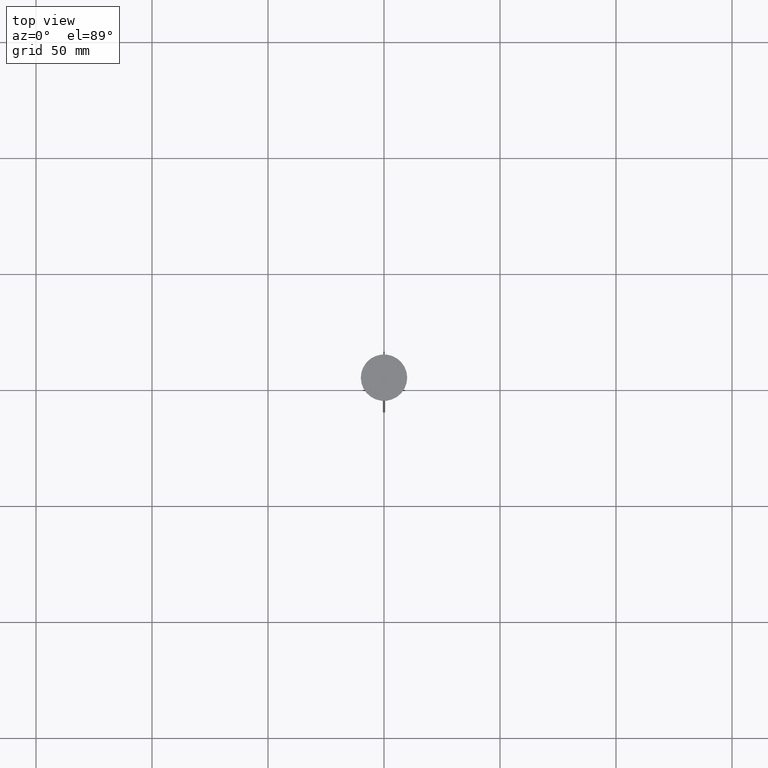
[diagram: clean part render]
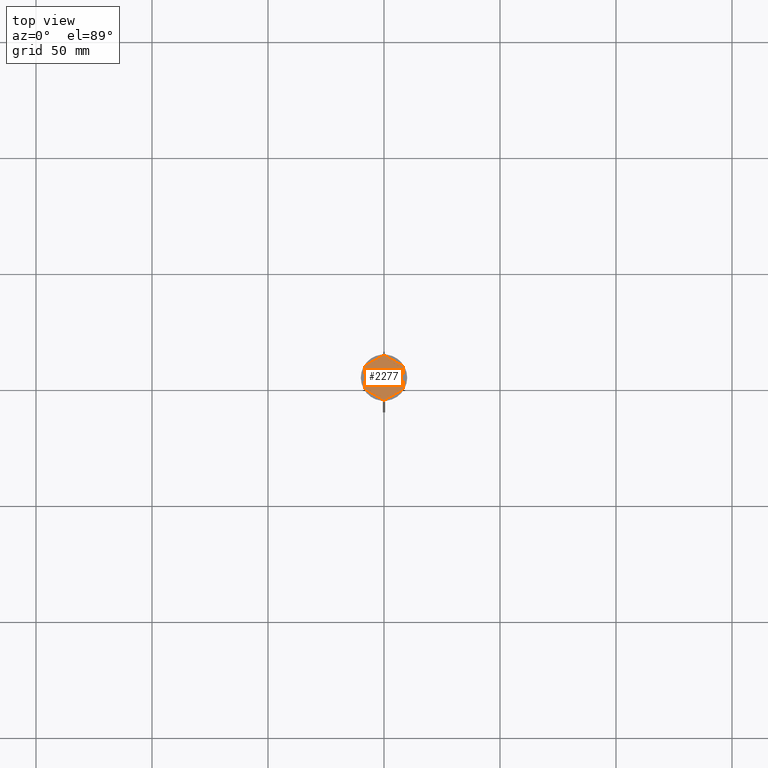
[diagram: same view with one face highlighted and labeled with its STEP entity id]
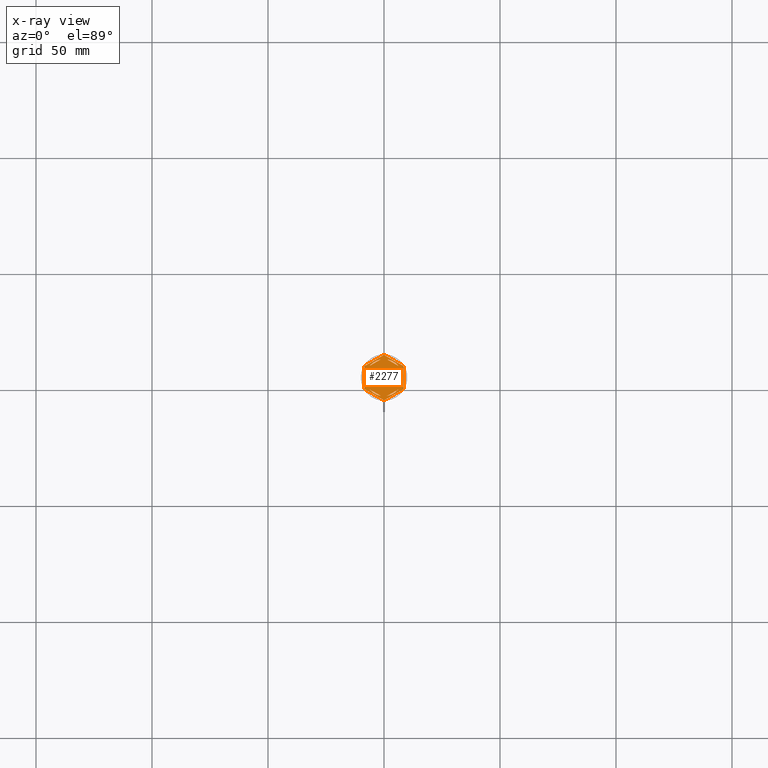
[diagram: x-ray of the same camera — body ghosted, the highlighted face saturated]
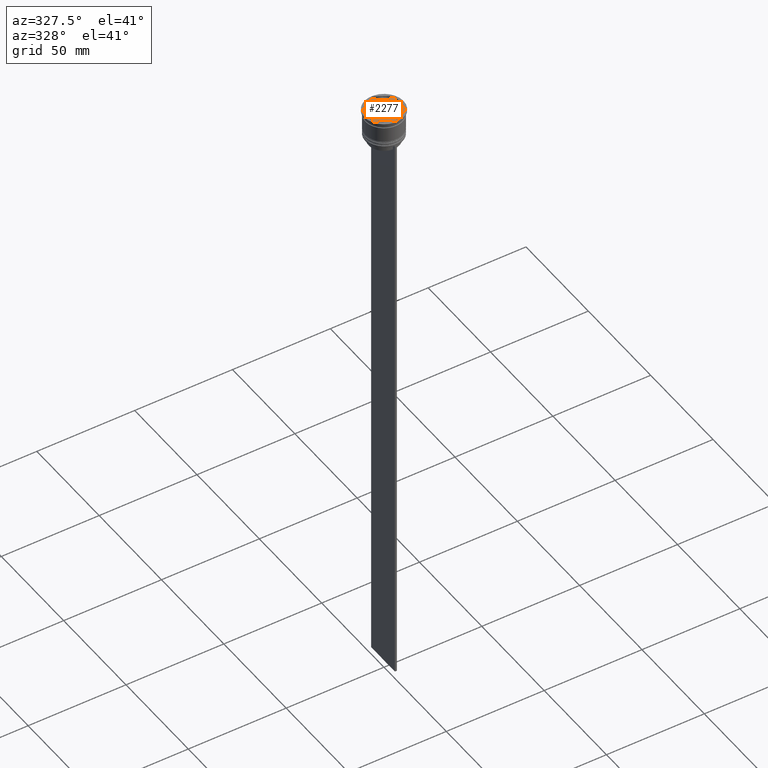
[diagram: same view with one face highlighted and labeled with its STEP entity id]
A machine part, top view. The second image highlights one B-rep face of the part: STEP entity #2277.
The next image is the same camera in x-ray: the body ghosted, the highlighted face saturated — about 0% of this face is hidden behind the body in this view.
A second angle (auxiliary view) of the same face is appended — the face is thin or edge-on in the first view.
In plain terms, the highlighted planar face has unit normal (0, 0, 1).
Its self-contained STEP definition (entity closure, byte-faithful):
#12 = FACE_BOUND ( 'NONE', #693, .T. ) ;
#20 = EDGE_CURVE ( 'NONE', #1239, #41, #211, .T. ) ;
#33 = CARTESIAN_POINT ( 'NONE',  ( -8.500000000000000000, -4.907477288111819824, -1.000000000000000000 ) ) ;
#41 = VERTEX_POINT ( 'NONE', #894 ) ;
#75 = DIRECTION ( 'NONE',  ( 0.8660254037844385966, 0.5000000000000000000, 0.000000000000000000 ) ) ;
#76 = AXIS2_PLACEMENT_3D ( 'NONE', #1139, #2396, #1766 ) ;
#86 = EDGE_CURVE ( 'NONE', #1559, #1458, #1887, .T. ) ;
#135 = FACE_BOUND ( 'NONE', #581, .T. ) ;
#145 = EDGE_CURVE ( 'NONE', #1882, #1637, #1884, .T. ) ;
#170 = EDGE_CURVE ( 'NONE', #2241, #1637, #294, .T. ) ;
#173 = CARTESIAN_POINT ( 'NONE',  ( 0.000000000000000000, 0.000000000000000000, -1.000000000000000000 ) ) ;
#178 = CARTESIAN_POINT ( 'NONE',  ( -7.500000000000000000, -4.330127018922193649, -1.000000000000000888 ) ) ;
#194 = CARTESIAN_POINT ( 'NONE',  ( -8.500000000000000000, -4.673328578219146934, -1.000000000000000000 ) ) ;
#208 = ORIENTED_EDGE ( 'NONE', *, *, #1494, .F. ) ;
#211 = LINE ( 'NONE', #2546, #2018 ) ;
#223 = CIRCLE ( 'NONE', #351, 8.000000000000000000 ) ;
#228 = EDGE_CURVE ( 'NONE', #1597, #2481, #2154, .T. ) ;
#236 = EDGE_CURVE ( 'NONE', #980, #2453, #979, .T. ) ;
#268 = CIRCLE ( 'NONE', #558, 8.000000000000000000 ) ;
#281 = CARTESIAN_POINT ( 'NONE',  ( 8.500000000000000000, 4.673328578219146934, -1.000000000000000000 ) ) ;
#294 = CIRCLE ( 'NONE', #892, 9.699999999999990408 ) ;
#306 = DIRECTION ( 'NONE',  ( -0.000000000000000000, -0.000000000000000000, -1.000000000000000000 ) ) ;
#340 = EDGE_CURVE ( 'NONE', #2407, #410, #1636, .T. ) ;
#351 = AXIS2_PLACEMENT_3D ( 'NONE', #821, #2474, #2653 ) ;
#363 = VERTEX_POINT ( 'NONE', #1796 ) ;
#391 = FACE_BOUND ( 'NONE', #2659, .T. ) ;
#399 = AXIS2_PLACEMENT_3D ( 'NONE', #1429, #2263, #2011 ) ;
#402 = VECTOR ( 'NONE', #716, 1000.000000000000114 ) ;
#410 = VERTEX_POINT ( 'NONE', #1040 ) ;
#453 = DIRECTION ( 'NONE',  ( 1.000000000000000000, 0.000000000000000000, 0.000000000000000000 ) ) ;
#476 = VECTOR ( 'NONE', #884, 1000.000000000000000 ) ;
#495 = DIRECTION ( 'NONE',  ( 0.000000000000000000, 0.000000000000000000, 1.000000000000000000 ) ) ;
#512 = CARTESIAN_POINT ( 'NONE',  ( -8.297221268969593666, 5.024551643058155825, -1.000000000000000000 ) ) ;
#524 = AXIS2_PLACEMENT_3D ( 'NONE', #2425, #306, #2604 ) ;
#530 = EDGE_CURVE ( 'NONE', #2044, #1018, #1063, .T. ) ;
#533 = CARTESIAN_POINT ( 'NONE',  ( 7.500000000000000000, -2.783882181415009427, -1.000000000000000888 ) ) ;
#541 = CARTESIAN_POINT ( 'NONE',  ( 0.000000000000000000, 9.814954576223636096, -1.000000000000000000 ) ) ;
#558 = AXIS2_PLACEMENT_3D ( 'NONE', #1702, #1908, #1296 ) ;
#568 = VECTOR ( 'NONE', #992, 1000.000000000000000 ) ;
#574 = VERTEX_POINT ( 'NONE', #2380 ) ;
#575 = EDGE_CURVE ( 'NONE', #410, #2407, #817, .T. ) ;
#581 = EDGE_LOOP ( 'NONE', ( #611, #1740 ) ) ;
#585 = VERTEX_POINT ( 'NONE', #533 ) ;
#611 = ORIENTED_EDGE ( 'NONE', *, *, #1311, .F. ) ;
#630 = EDGE_LOOP ( 'NONE', ( #1187, #1654, #1576, #2199, #2318, #2064, #1274, #991, #1156, #1742, #1856, #1828 ) ) ;
#632 = CARTESIAN_POINT ( 'NONE',  ( -6.160912690248237844, -5.103249437675787092, -1.000000000000000888 ) ) ;
#634 = EDGE_CURVE ( 'NONE', #574, #2464, #1726, .T. ) ;
#650 = VECTOR ( 'NONE', #2657, 1000.000000000000000 ) ;
#671 = DIRECTION ( 'NONE',  ( 1.000000000000000000, 0.000000000000000000, -0.000000000000000000 ) ) ;
#680 = CARTESIAN_POINT ( 'NONE',  ( 7.500000000000000000, -4.330127018922195425, -1.000000000000000888 ) ) ;
#693 = EDGE_LOOP ( 'NONE', ( #2339, #1047 ) ) ;
#696 = VECTOR ( 'NONE', #942, 1000.000000000000000 ) ;
#706 = CARTESIAN_POINT ( 'NONE',  ( 8.297221268969593666, 5.024551643058155825, -1.000000000000000000 ) ) ;
#715 = ORIENTED_EDGE ( 'NONE', *, *, #1878, .F. ) ;
#716 = DIRECTION ( 'NONE',  ( -0.8660254037844387076, -0.4999999999999997780, 0.000000000000000000 ) ) ;
#751 = FACE_BOUND ( 'NONE', #1685, .T. ) ;
#765 = VERTEX_POINT ( 'NONE', #194 ) ;
#791 = CARTESIAN_POINT ( 'NONE',  ( 8.500000000000000000, 4.907477288111819824, -1.000000000000000000 ) ) ;
#799 = VERTEX_POINT ( 'NONE', #1198 ) ;
#813 = VERTEX_POINT ( 'NONE', #2025 ) ;
#817 = CIRCLE ( 'NONE', #861, 8.000000000000000000 ) ;
#821 = CARTESIAN_POINT ( 'NONE',  ( 0.000000000000000000, 0.000000000000000000, -1.000000000000000000 ) ) ;
#823 = EDGE_CURVE ( 'NONE', #41, #1239, #1120, .T. ) ;
#846 = ORIENTED_EDGE ( 'NONE', *, *, #1290, .F. ) ;
#853 = DIRECTION ( 'NONE',  ( 0.8660254037844387076, -0.4999999999999997780, 0.000000000000000000 ) ) ;
#861 = AXIS2_PLACEMENT_3D ( 'NONE', #1781, #1985, #2597 ) ;
#882 = DIRECTION ( 'NONE',  ( 0.000000000000000000, 0.000000000000000000, 1.000000000000000000 ) ) ;
#884 = DIRECTION ( 'NONE',  ( 0.000000000000000000, 1.000000000000000000, 0.000000000000000000 ) ) ;
#886 = ORIENTED_EDGE ( 'NONE', *, *, #530, .F. ) ;
#892 = AXIS2_PLACEMENT_3D ( 'NONE', #1785, #1746, #2586 ) ;
#894 = CARTESIAN_POINT ( 'NONE',  ( 6.160912690248237844, 5.103249437675785316, -1.000000000000000888 ) ) ;
#913 = CARTESIAN_POINT ( 'NONE',  ( 8.297221268969593666, -5.024551643058152273, -1.000000000000000000 ) ) ;
#927 = CARTESIAN_POINT ( 'NONE',  ( 0.000000000000000000, 0.000000000000000000, -1.000000000000000000 ) ) ;
#939 = CARTESIAN_POINT ( 'NONE',  ( -1.339087309751766819, -7.887131619090794743, -1.000000000000000888 ) ) ;
#942 = DIRECTION ( 'NONE',  ( -2.003086131649545704E-16, -1.000000000000000000, 0.000000000000000000 ) ) ;
#972 = EDGE_CURVE ( 'NONE', #1882, #765, #2595, .T. ) ;
#979 = CIRCLE ( 'NONE', #76, 9.699999999999990408 ) ;
#980 = VERTEX_POINT ( 'NONE', #706 ) ;
#986 = VERTEX_POINT ( 'NONE', #939 ) ;
#991 = ORIENTED_EDGE ( 'NONE', *, *, #972, .F. ) ;
#992 = DIRECTION ( 'NONE',  ( 0.000000000000000000, -1.000000000000000000, 0.000000000000000000 ) ) ;
#1012 = LINE ( 'NONE', #178, #1602 ) ;
#1018 = VERTEX_POINT ( 'NONE', #2569 ) ;
#1021 = FACE_BOUND ( 'NONE', #2210, .T. ) ;
#1040 = CARTESIAN_POINT ( 'NONE',  ( -1.339087309751759047, 7.887131619090796519, -1.000000000000000888 ) ) ;
#1042 = AXIS2_PLACEMENT_3D ( 'NONE', #173, #1404, #2048 ) ;
#1047 = ORIENTED_EDGE ( 'NONE', *, *, #340, .F. ) ;
#1063 = LINE ( 'NONE', #2146, #2636 ) ;
#1085 = LINE ( 'NONE', #1930, #2043 ) ;
#1105 = VECTOR ( 'NONE', #853, 1000.000000000000114 ) ;
#1120 = CIRCLE ( 'NONE', #2299, 8.000000000000000000 ) ;
#1139 = CARTESIAN_POINT ( 'NONE',  ( 0.000000000000000000, 0.000000000000000000, -1.000000000000000000 ) ) ;
#1156 = ORIENTED_EDGE ( 'NONE', *, *, #145, .T. ) ;
#1187 = ORIENTED_EDGE ( 'NONE', *, *, #1521, .T. ) ;
#1193 = VERTEX_POINT ( 'NONE', #632 ) ;
#1198 = CARTESIAN_POINT ( 'NONE',  ( -7.500000000000000000, 2.783882181415010759, -1.000000000000000888 ) ) ;
#1222 = EDGE_CURVE ( 'NONE', #986, #1193, #1012, .T. ) ;
#1230 = CARTESIAN_POINT ( 'NONE',  ( 1.339087309751760380, 7.887131619090794743, -1.000000000000000888 ) ) ;
#1239 = VERTEX_POINT ( 'NONE', #1230 ) ;
#1240 = EDGE_CURVE ( 'NONE', #1018, #2044, #223, .T. ) ;
#1256 = FACE_OUTER_BOUND ( 'NONE', #630, .T. ) ;
#1274 = ORIENTED_EDGE ( 'NONE', *, *, #2421, .T. ) ;
#1281 = CARTESIAN_POINT ( 'NONE',  ( 0.2027787310304000890, 9.697880221277303647, -1.000000000000000000 ) ) ;
#1286 = DIRECTION ( 'NONE',  ( 0.000000000000000000, 1.000000000000000000, 0.000000000000000000 ) ) ;
#1290 = EDGE_CURVE ( 'NONE', #1458, #799, #1527, .T. ) ;
#1296 = DIRECTION ( 'NONE',  ( 1.000000000000000000, 0.000000000000000000, 0.000000000000000000 ) ) ;
#1311 = EDGE_CURVE ( 'NONE', #1193, #986, #268, .T. ) ;
#1353 = DIRECTION ( 'NONE',  ( -0.8660254037844387076, -0.4999999999999997780, 0.000000000000000000 ) ) ;
#1404 = DIRECTION ( 'NONE',  ( 0.000000000000000000, 0.000000000000000000, 1.000000000000000000 ) ) ;
#1429 = CARTESIAN_POINT ( 'NONE',  ( 0.000000000000000000, 0.000000000000000000, -1.000000000000000000 ) ) ;
#1436 = DIRECTION ( 'NONE',  ( -0.8660254037844384856, 0.5000000000000002220, 0.000000000000000000 ) ) ;
#1458 = VERTEX_POINT ( 'NONE', #2251 ) ;
#1464 = CARTESIAN_POINT ( 'NONE',  ( 0.000000000000000000, 0.000000000000000000, -1.000000000000000000 ) ) ;
#1469 = CARTESIAN_POINT ( 'NONE',  ( 0.000000000000000000, 0.000000000000000000, -1.000000000000000000 ) ) ;
#1492 = CARTESIAN_POINT ( 'NONE',  ( -8.000000000000000000, 0.000000000000000000, -1.000000000000000000 ) ) ;
#1494 = EDGE_CURVE ( 'NONE', #799, #1559, #2383, .T. ) ;
#1521 = EDGE_CURVE ( 'NONE', #574, #2453, #2331, .T. ) ;
#1526 = DIRECTION ( 'NONE',  ( -0.000000000000000000, -0.000000000000000000, -1.000000000000000000 ) ) ;
#1527 = LINE ( 'NONE', #2514, #2599 ) ;
#1559 = VERTEX_POINT ( 'NONE', #1492 ) ;
#1574 = ORIENTED_EDGE ( 'NONE', *, *, #86, .F. ) ;
#1576 = ORIENTED_EDGE ( 'NONE', *, *, #1936, .T. ) ;
#1577 = DIRECTION ( 'NONE',  ( 1.000000000000000000, 0.000000000000000000, 0.000000000000000000 ) ) ;
#1591 = ORIENTED_EDGE ( 'NONE', *, *, #823, .F. ) ;
#1597 = VERTEX_POINT ( 'NONE', #2076 ) ;
#1602 = VECTOR ( 'NONE', #1436, 1000.000000000000114 ) ;
#1627 = EDGE_LOOP ( 'NONE', ( #2372, #886 ) ) ;
#1628 = CARTESIAN_POINT ( 'NONE',  ( -8.500000000000000000, 4.907477288111818936, -1.000000000000000000 ) ) ;
#1636 = LINE ( 'NONE', #1851, #1932 ) ;
#1637 = VERTEX_POINT ( 'NONE', #2022 ) ;
#1644 = CARTESIAN_POINT ( 'NONE',  ( 0.000000000000000000, 0.000000000000000000, -1.000000000000000000 ) ) ;
#1654 = ORIENTED_EDGE ( 'NONE', *, *, #236, .F. ) ;
#1672 = DIRECTION ( 'NONE',  ( 0.000000000000000000, 0.000000000000000000, 1.000000000000000000 ) ) ;
#1685 = EDGE_LOOP ( 'NONE', ( #1591, #1804 ) ) ;
#1702 = CARTESIAN_POINT ( 'NONE',  ( 0.000000000000000000, 0.000000000000000000, -1.000000000000000000 ) ) ;
#1720 = DIRECTION ( 'NONE',  ( 0.8660254037844387076, -0.4999999999999998890, 0.000000000000000000 ) ) ;
#1726 = CIRCLE ( 'NONE', #2173, 9.699999999999990408 ) ;
#1740 = ORIENTED_EDGE ( 'NONE', *, *, #1222, .F. ) ;
#1742 = ORIENTED_EDGE ( 'NONE', *, *, #170, .F. ) ;
#1746 = DIRECTION ( 'NONE',  ( -0.000000000000000000, -0.000000000000000000, -1.000000000000000000 ) ) ;
#1754 = CARTESIAN_POINT ( 'NONE',  ( 0.2027787310304044188, -9.697880221277303647, -1.000000000000000000 ) ) ;
#1758 = VERTEX_POINT ( 'NONE', #1281 ) ;
#1766 = DIRECTION ( 'NONE',  ( 1.000000000000000000, 0.000000000000000000, 0.000000000000000000 ) ) ;
#1767 = AXIS2_PLACEMENT_3D ( 'NONE', #927, #1526, #2350 ) ;
#1773 = LINE ( 'NONE', #541, #402 ) ;
#1781 = CARTESIAN_POINT ( 'NONE',  ( 0.000000000000000000, 0.000000000000000000, -1.000000000000000000 ) ) ;
#1785 = CARTESIAN_POINT ( 'NONE',  ( 0.000000000000000000, 0.000000000000000000, -1.000000000000000000 ) ) ;
#1796 = CARTESIAN_POINT ( 'NONE',  ( 7.500000000000001776, 2.783882181415006762, -1.000000000000000888 ) ) ;
#1804 = ORIENTED_EDGE ( 'NONE', *, *, #20, .F. ) ;
#1828 = ORIENTED_EDGE ( 'NONE', *, *, #634, .F. ) ;
#1830 = ORIENTED_EDGE ( 'NONE', *, *, #2223, .F. ) ;
#1851 = CARTESIAN_POINT ( 'NONE',  ( 8.673617379884035472E-16, 8.660254037844385522, -1.000000000000000888 ) ) ;
#1856 = ORIENTED_EDGE ( 'NONE', *, *, #2619, .T. ) ;
#1869 = AXIS2_PLACEMENT_3D ( 'NONE', #1469, #495, #671 ) ;
#1878 = EDGE_CURVE ( 'NONE', #585, #363, #1956, .T. ) ;
#1882 = VERTEX_POINT ( 'NONE', #1993 ) ;
#1884 = LINE ( 'NONE', #33, #1105 ) ;
#1887 = CIRCLE ( 'NONE', #2403, 8.000000000000000000 ) ;
#1908 = DIRECTION ( 'NONE',  ( 0.000000000000000000, 0.000000000000000000, 1.000000000000000000 ) ) ;
#1918 = CIRCLE ( 'NONE', #524, 9.699999999999990408 ) ;
#1930 = CARTESIAN_POINT ( 'NONE',  ( 8.729740977282959667E-16, -9.814954576223637872, -1.000000000000000000 ) ) ;
#1932 = VECTOR ( 'NONE', #2272, 999.9999999999998863 ) ;
#1936 = EDGE_CURVE ( 'NONE', #980, #1758, #2209, .T. ) ;
#1947 = LINE ( 'NONE', #680, #696 ) ;
#1955 = CARTESIAN_POINT ( 'NONE',  ( 0.000000000000000000, 0.000000000000000000, -1.000000000000000000 ) ) ;
#1956 = CIRCLE ( 'NONE', #1042, 8.000000000000000000 ) ;
#1985 = DIRECTION ( 'NONE',  ( 0.000000000000000000, 0.000000000000000000, 1.000000000000000000 ) ) ;
#1993 = CARTESIAN_POINT ( 'NONE',  ( -8.297221268969593666, -5.024551643058157602, -1.000000000000000000 ) ) ;
#2011 = DIRECTION ( 'NONE',  ( 1.000000000000000000, 0.000000000000000000, 0.000000000000000000 ) ) ;
#2018 = VECTOR ( 'NONE', #1720, 1000.000000000000000 ) ;
#2022 = CARTESIAN_POINT ( 'NONE',  ( -0.2027787310304044188, -9.697880221277303647, -1.000000000000000000 ) ) ;
#2025 = CARTESIAN_POINT ( 'NONE',  ( -0.2027787310304009494, 9.697880221277303647, -1.000000000000000000 ) ) ;
#2043 = VECTOR ( 'NONE', #75, 1000.000000000000227 ) ;
#2044 = VERTEX_POINT ( 'NONE', #2542 ) ;
#2048 = DIRECTION ( 'NONE',  ( 1.000000000000000000, 0.000000000000000000, 0.000000000000000000 ) ) ;
#2064 = ORIENTED_EDGE ( 'NONE', *, *, #228, .F. ) ;
#2076 = CARTESIAN_POINT ( 'NONE',  ( -8.500000000000000000, 4.673328578219146934, -1.000000000000000000 ) ) ;
#2079 = PLANE ( 'NONE',  #1869 ) ;
#2106 = AXIS2_PLACEMENT_3D ( 'NONE', #1955, #2563, #2601 ) ;
#2132 = DIRECTION ( 'NONE',  ( 1.000000000000000000, 0.000000000000000000, 0.000000000000000000 ) ) ;
#2146 = CARTESIAN_POINT ( 'NONE',  ( -1.301042606982605321E-15, -8.660254037844387298, -1.000000000000000888 ) ) ;
#2154 = CIRCLE ( 'NONE', #2106, 9.699999999999990408 ) ;
#2160 = DIRECTION ( 'NONE',  ( -0.000000000000000000, -0.000000000000000000, -1.000000000000000000 ) ) ;
#2173 = AXIS2_PLACEMENT_3D ( 'NONE', #2609, #2160, #1577 ) ;
#2199 = ORIENTED_EDGE ( 'NONE', *, *, #2669, .F. ) ;
#2209 = LINE ( 'NONE', #791, #650 ) ;
#2210 = EDGE_LOOP ( 'NONE', ( #208, #846, #1574 ) ) ;
#2223 = EDGE_CURVE ( 'NONE', #363, #585, #1947, .T. ) ;
#2241 = VERTEX_POINT ( 'NONE', #1754 ) ;
#2250 = LINE ( 'NONE', #1628, #568 ) ;
#2251 = CARTESIAN_POINT ( 'NONE',  ( -7.500000000000000000, -2.783882181415010759, -1.000000000000000888 ) ) ;
#2263 = DIRECTION ( 'NONE',  ( 0.000000000000000000, 0.000000000000000000, 1.000000000000000000 ) ) ;
#2272 = DIRECTION ( 'NONE',  ( 0.8660254037844387076, 0.5000000000000001110, -0.000000000000000000 ) ) ;
#2277 = ADVANCED_FACE ( 'NONE', ( #751, #391, #2456, #135, #1021, #12, #1256 ), #2079, .T. ) ;
#2299 = AXIS2_PLACEMENT_3D ( 'NONE', #1644, #1672, #453 ) ;
#2318 = ORIENTED_EDGE ( 'NONE', *, *, #2454, .T. ) ;
#2331 = LINE ( 'NONE', #2506, #476 ) ;
#2339 = ORIENTED_EDGE ( 'NONE', *, *, #575, .F. ) ;
#2350 = DIRECTION ( 'NONE',  ( 1.000000000000000000, 0.000000000000000000, 0.000000000000000000 ) ) ;
#2372 = ORIENTED_EDGE ( 'NONE', *, *, #1240, .F. ) ;
#2380 = CARTESIAN_POINT ( 'NONE',  ( 8.500000000000000000, -4.673328578219146934, -1.000000000000000000 ) ) ;
#2383 = CIRCLE ( 'NONE', #399, 8.000000000000000000 ) ;
#2396 = DIRECTION ( 'NONE',  ( -0.000000000000000000, -0.000000000000000000, -1.000000000000000000 ) ) ;
#2403 = AXIS2_PLACEMENT_3D ( 'NONE', #1464, #882, #2132 ) ;
#2407 = VERTEX_POINT ( 'NONE', #2647 ) ;
#2421 = EDGE_CURVE ( 'NONE', #1597, #765, #2250, .T. ) ;
#2425 = CARTESIAN_POINT ( 'NONE',  ( 0.000000000000000000, 0.000000000000000000, -1.000000000000000000 ) ) ;
#2453 = VERTEX_POINT ( 'NONE', #281 ) ;
#2454 = EDGE_CURVE ( 'NONE', #813, #2481, #1773, .T. ) ;
#2456 = FACE_BOUND ( 'NONE', #1627, .T. ) ;
#2464 = VERTEX_POINT ( 'NONE', #913 ) ;
#2474 = DIRECTION ( 'NONE',  ( 0.000000000000000000, 0.000000000000000000, 1.000000000000000000 ) ) ;
#2481 = VERTEX_POINT ( 'NONE', #512 ) ;
#2506 = CARTESIAN_POINT ( 'NONE',  ( 8.500000000000000000, -4.907477288111818936, -1.000000000000000000 ) ) ;
#2514 = CARTESIAN_POINT ( 'NONE',  ( -7.500000000000000000, 4.330127018922190985, -1.000000000000000888 ) ) ;
#2542 = CARTESIAN_POINT ( 'NONE',  ( 6.160912690248236068, -5.103249437675787981, -1.000000000000000888 ) ) ;
#2546 = CARTESIAN_POINT ( 'NONE',  ( 7.500000000000001776, 4.330127018922192761, -1.000000000000000888 ) ) ;
#2563 = DIRECTION ( 'NONE',  ( -0.000000000000000000, -0.000000000000000000, -1.000000000000000000 ) ) ;
#2569 = CARTESIAN_POINT ( 'NONE',  ( 1.339087309751762156, -7.887131619090794743, -1.000000000000000888 ) ) ;
#2586 = DIRECTION ( 'NONE',  ( 1.000000000000000000, 0.000000000000000000, 0.000000000000000000 ) ) ;
#2595 = CIRCLE ( 'NONE', #1767, 9.699999999999990408 ) ;
#2597 = DIRECTION ( 'NONE',  ( 1.000000000000000000, 0.000000000000000000, 0.000000000000000000 ) ) ;
#2599 = VECTOR ( 'NONE', #1286, 1000.000000000000000 ) ;
#2601 = DIRECTION ( 'NONE',  ( 1.000000000000000000, 0.000000000000000000, 0.000000000000000000 ) ) ;
#2604 = DIRECTION ( 'NONE',  ( 1.000000000000000000, 2.486899575160350651E-14, 0.000000000000000000 ) ) ;
#2609 = CARTESIAN_POINT ( 'NONE',  ( 0.000000000000000000, 0.000000000000000000, -1.000000000000000000 ) ) ;
#2619 = EDGE_CURVE ( 'NONE', #2241, #2464, #1085, .T. ) ;
#2636 = VECTOR ( 'NONE', #1353, 1000.000000000000114 ) ;
#2647 = CARTESIAN_POINT ( 'NONE',  ( -6.160912690248241397, 5.103249437675783540, -1.000000000000000888 ) ) ;
#2653 = DIRECTION ( 'NONE',  ( 1.000000000000000000, 0.000000000000000000, 0.000000000000000000 ) ) ;
#2657 = DIRECTION ( 'NONE',  ( -0.8660254037844388186, 0.4999999999999997224, 0.000000000000000000 ) ) ;
#2659 = EDGE_LOOP ( 'NONE', ( #715, #1830 ) ) ;
#2669 = EDGE_CURVE ( 'NONE', #813, #1758, #1918, .T. ) ;